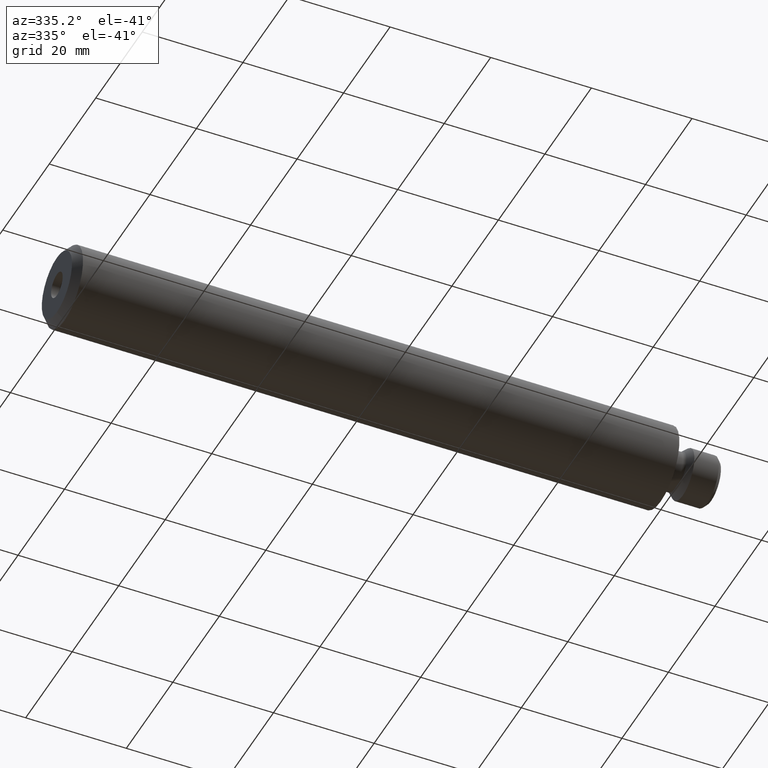
[diagram: clean part render]
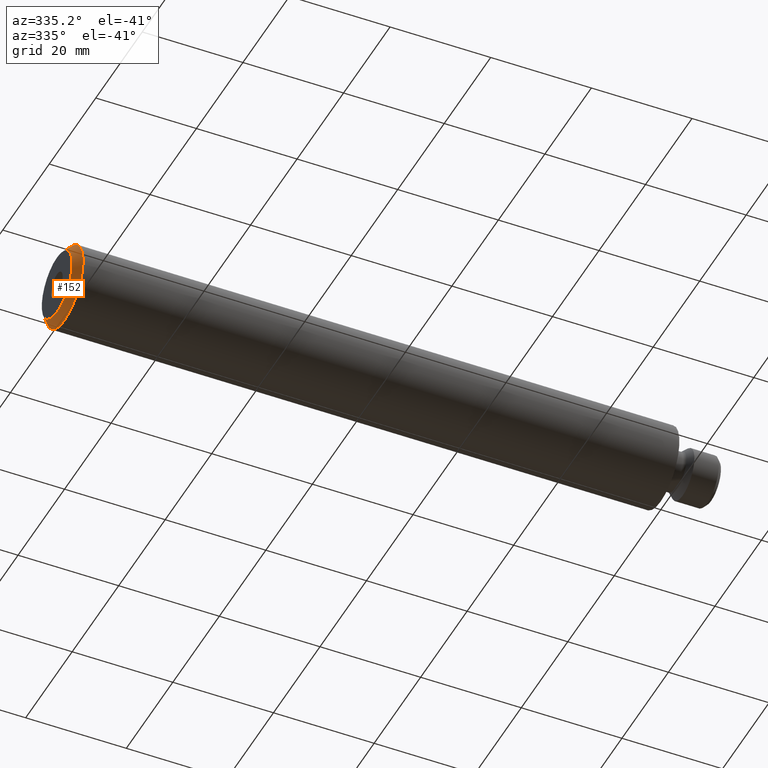
[diagram: same view with one face highlighted and labeled with its STEP entity id]
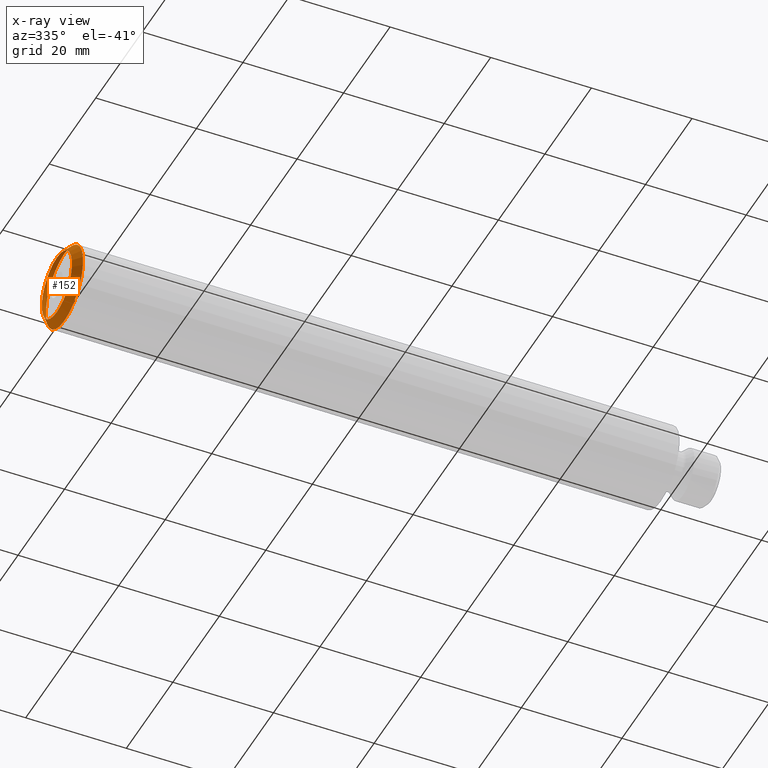
[diagram: x-ray of the same camera — body ghosted, the highlighted face saturated]
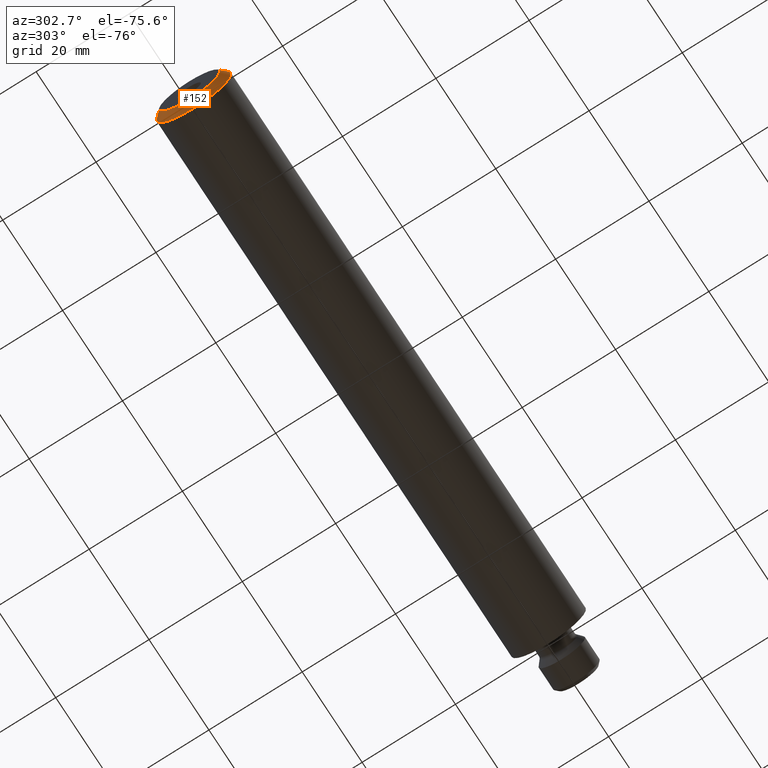
[diagram: same view with one face highlighted and labeled with its STEP entity id]
A machine part, auxiliary view. The second image highlights one B-rep face of the part: STEP entity #152.
The next image is the same camera in x-ray: the body ghosted, the highlighted face saturated — about 0% of this face is hidden behind the body in this view.
A second angle (auxiliary view) of the same face is appended — the face is thin or edge-on in the first view.
In plain terms, the highlighted conical surface has half-angle 45 deg.
Its self-contained STEP definition (entity closure, byte-faithful):
#9 = CARTESIAN_POINT ( 'NONE',  ( -118.5000000000000000, 0.0000000000000000000, 0.0000000000000000000 ) ) ;
#11 = DIRECTION ( 'NONE',  ( 0.0000000000000000000, 0.0000000000000000000, -1.000000000000000000 ) ) ;
#14 = FACE_OUTER_BOUND ( 'NONE', #210, .T. ) ;
#19 = AXIS2_PLACEMENT_3D ( 'NONE', #283, #246, #491 ) ;
#85 = FACE_BOUND ( 'NONE', #200, .T. ) ;
#94 = CARTESIAN_POINT ( 'NONE',  ( -120.0000000000000000, 0.0000000000000000000, 0.0000000000000000000 ) ) ;
#102 = CIRCLE ( 'NONE', #103, 7.999999999999989300 ) ;
#103 = AXIS2_PLACEMENT_3D ( 'NONE', #9, #389, #308 ) ;
#140 = ORIENTED_EDGE ( 'NONE', *, *, #376, .F. ) ;
#152 = ADVANCED_FACE ( 'NONE', ( #85, #14 ), #170, .T. ) ;
#170 = CONICAL_SURFACE ( 'NONE', #19, 7.999999999999989300, 0.7853981633974509400 ) ;
#182 = VERTEX_POINT ( 'NONE', #415 ) ;
#200 = EDGE_LOOP ( 'NONE', ( #423 ) ) ;
#210 = EDGE_LOOP ( 'NONE', ( #140 ) ) ;
#246 = DIRECTION ( 'NONE',  ( 1.000000000000000000, 0.0000000000000000000, 0.0000000000000000000 ) ) ;
#278 = VERTEX_POINT ( 'NONE', #370 ) ;
#283 = CARTESIAN_POINT ( 'NONE',  ( -118.5000000000000000, 0.0000000000000000000, 0.0000000000000000000 ) ) ;
#308 = DIRECTION ( 'NONE',  ( 0.0000000000000000000, 0.0000000000000000000, -1.000000000000000000 ) ) ;
#370 = CARTESIAN_POINT ( 'NONE',  ( -118.5000000000000000, 0.0000000000000000000, -7.999999999999989300 ) ) ;
#376 = EDGE_CURVE ( 'NONE', #278, #278, #102, .T. ) ;
#389 = DIRECTION ( 'NONE',  ( 1.000000000000000000, 0.0000000000000000000, 0.0000000000000000000 ) ) ;
#394 = CIRCLE ( 'NONE', #461, 6.499999999999979600 ) ;
#396 = EDGE_CURVE ( 'NONE', #182, #182, #394, .T. ) ;
#415 = CARTESIAN_POINT ( 'NONE',  ( -120.0000000000000000, 0.0000000000000000000, -6.499999999999979600 ) ) ;
#423 = ORIENTED_EDGE ( 'NONE', *, *, #396, .T. ) ;
#429 = DIRECTION ( 'NONE',  ( 1.000000000000000000, 0.0000000000000000000, 0.0000000000000000000 ) ) ;
#461 = AXIS2_PLACEMENT_3D ( 'NONE', #94, #429, #11 ) ;
#491 = DIRECTION ( 'NONE',  ( 0.0000000000000000000, 0.0000000000000000000, -1.000000000000000000 ) ) ;